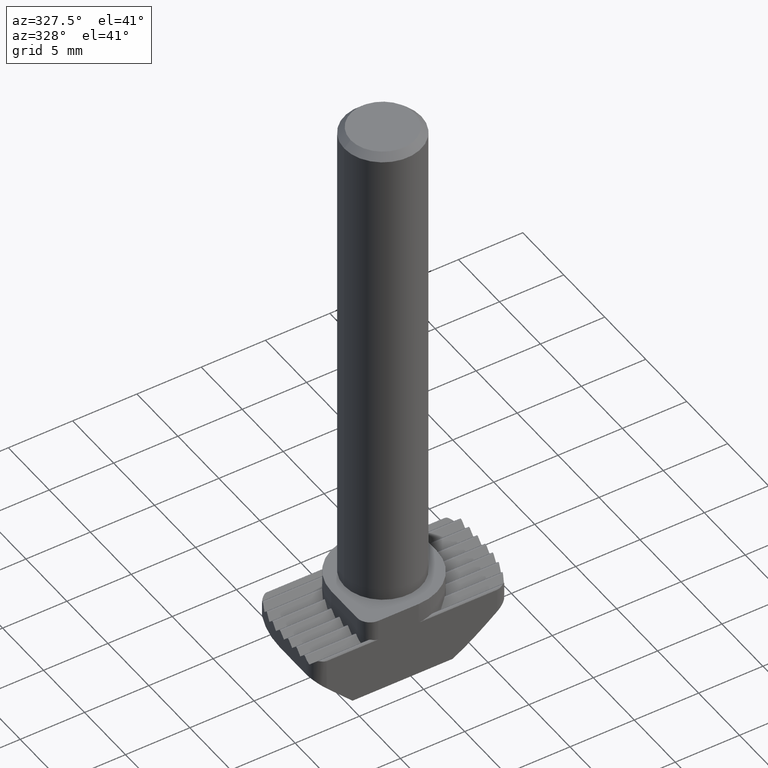
[diagram: clean part render]
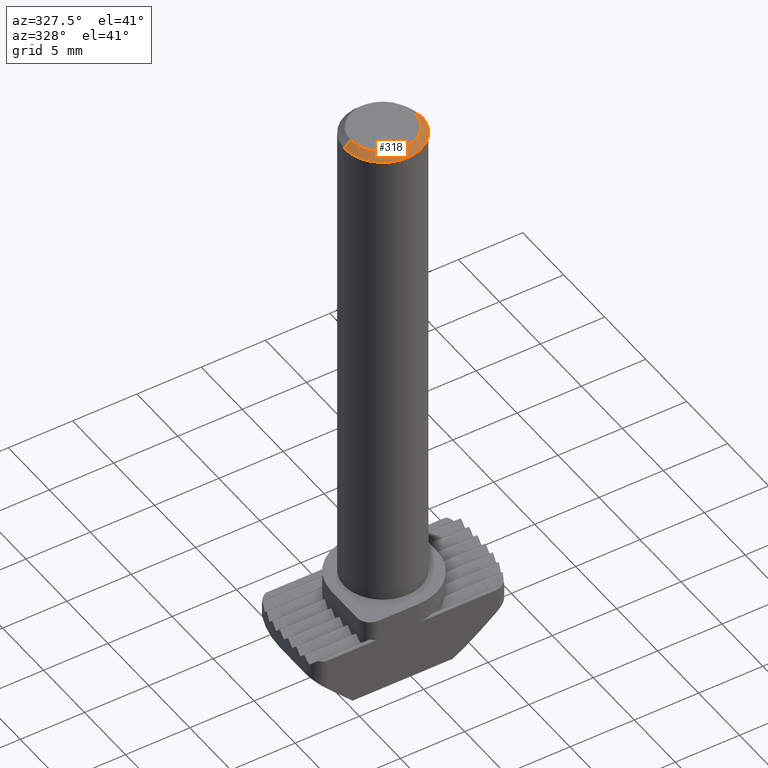
[diagram: same view with one face highlighted and labeled with its STEP entity id]
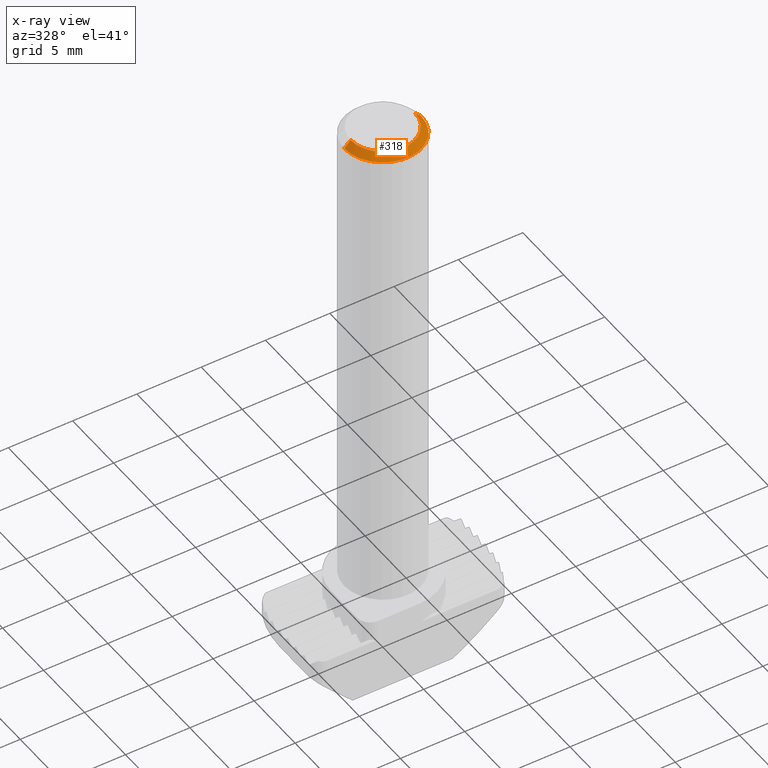
[diagram: x-ray of the same camera — body ghosted, the highlighted face saturated]
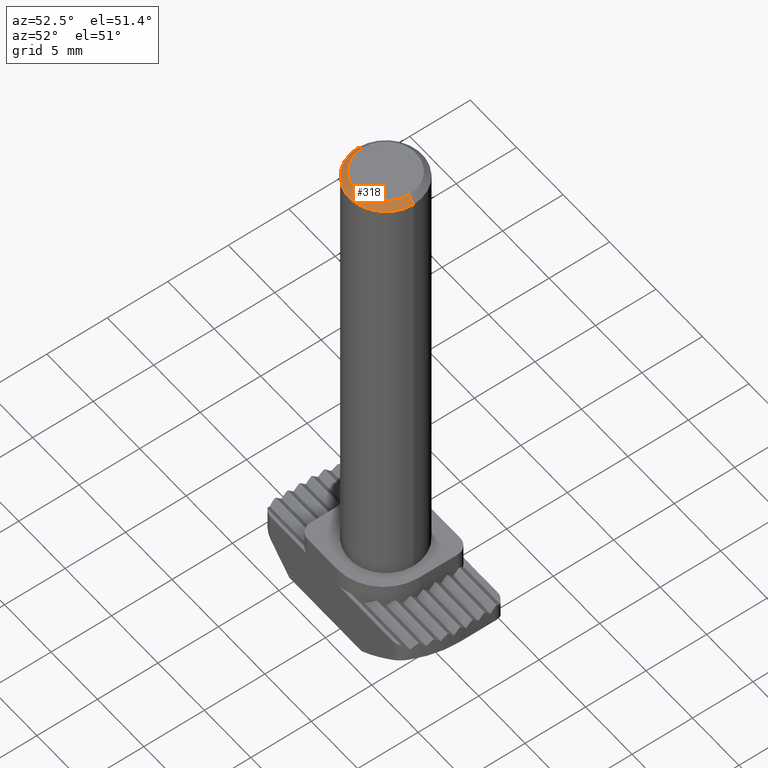
[diagram: same view with one face highlighted and labeled with its STEP entity id]
A machine part, auxiliary view. The second image highlights one B-rep face of the part: STEP entity #318.
The next image is the same camera in x-ray: the body ghosted, the highlighted face saturated — about 0% of this face is hidden behind the body in this view.
A second angle (auxiliary view) of the same face is appended — the face is thin or edge-on in the first view.
In plain terms, the highlighted conical surface has half-angle 45 deg.
Its self-contained STEP definition (entity closure, byte-faithful):
#318=ADVANCED_FACE('NONE',(#632),#633,.T.);
#632=FACE_OUTER_BOUND('',#938,.T.);
#633=CONICAL_SURFACE('',#939,2.50000000000001,0.785398163397448);
#938=EDGE_LOOP('',(#1888,#1889,#1890,#1891));
#939=AXIS2_PLACEMENT_3D('',#1892,#1893,#1894);
#1888=ORIENTED_EDGE('',*,*,#2001,.F.);
#1889=ORIENTED_EDGE('',*,*,#2280,.T.);
#1890=ORIENTED_EDGE('',*,*,#2002,.T.);
#1891=ORIENTED_EDGE('',*,*,#2282,.F.);
#1892=CARTESIAN_POINT('',(0.0,0.0,44.5));
#1893=DIRECTION('',(-0.0,-0.0,-1.0));
#1894=DIRECTION('',(-1.0,0.0,0.0));
#2001=EDGE_CURVE('NONE',#2458,#2449,#2460,.T.);
#2002=EDGE_CURVE('NONE',#2457,#2448,#2461,.T.);
#2280=EDGE_CURVE('NONE',#2458,#2457,#2846,.T.);
#2282=EDGE_CURVE('NONE',#2449,#2448,#2848,.T.);
#2448=VERTEX_POINT('NONE',#3320);
#2449=VERTEX_POINT('NONE',#3321);
#2457=VERTEX_POINT('NONE',#3331);
#2458=VERTEX_POINT('NONE',#3332);
#2460=LINE('',#3334,#3335);
#2461=LINE('',#3336,#3337);
#2846=CIRCLE('',#4637,2.50000000000001);
#2848=CIRCLE('',#4639,3.00000000000001);
#3320=CARTESIAN_POINT('',(-3.00000000000001,0.0,44.0));
#3321=CARTESIAN_POINT('',(3.00000000000001,3.67394039744207E-016,44.0));
#3331=CARTESIAN_POINT('',(-2.50000000000001,0.0,44.5));
#3332=CARTESIAN_POINT('',(2.50000000000001,3.36777869765523E-016,44.5));
#3334=CARTESIAN_POINT('',(2.50000000000001,3.06161699786839E-016,44.5));
#3335=VECTOR('',#4725,1000.0);
#3336=CARTESIAN_POINT('',(-2.50000000000001,0.0,44.5));
#3337=VECTOR('',#4726,1000.0);
#4637=AXIS2_PLACEMENT_3D('',#4890,#4891,#4892);
#4639=AXIS2_PLACEMENT_3D('',#4893,#4894,#4895);
#4725=DIRECTION('',(0.707106781186547,8.65956056235493E-017,-0.707106781186548));
#4726=DIRECTION('',(-0.707106781186547,0.0,-0.707106781186548));
#4890=CARTESIAN_POINT('',(0.0,0.0,44.5));
#4891=DIRECTION('',(0.0,0.0,-1.0));
#4892=DIRECTION('',(-1.0,0.0,0.0));
#4893=CARTESIAN_POINT('',(0.0,0.0,44.0));
#4894=DIRECTION('',(0.0,0.0,-1.0));
#4895=DIRECTION('',(-1.0,0.0,0.0));